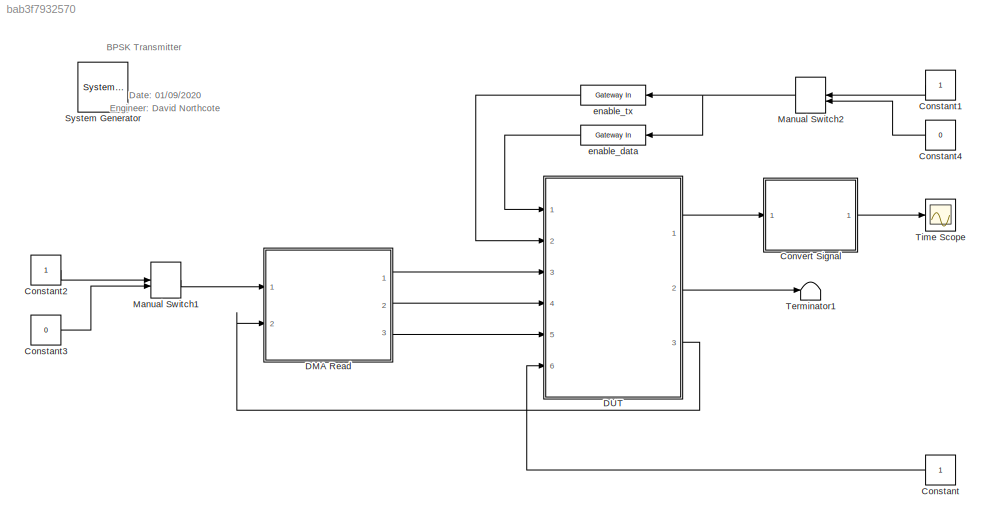
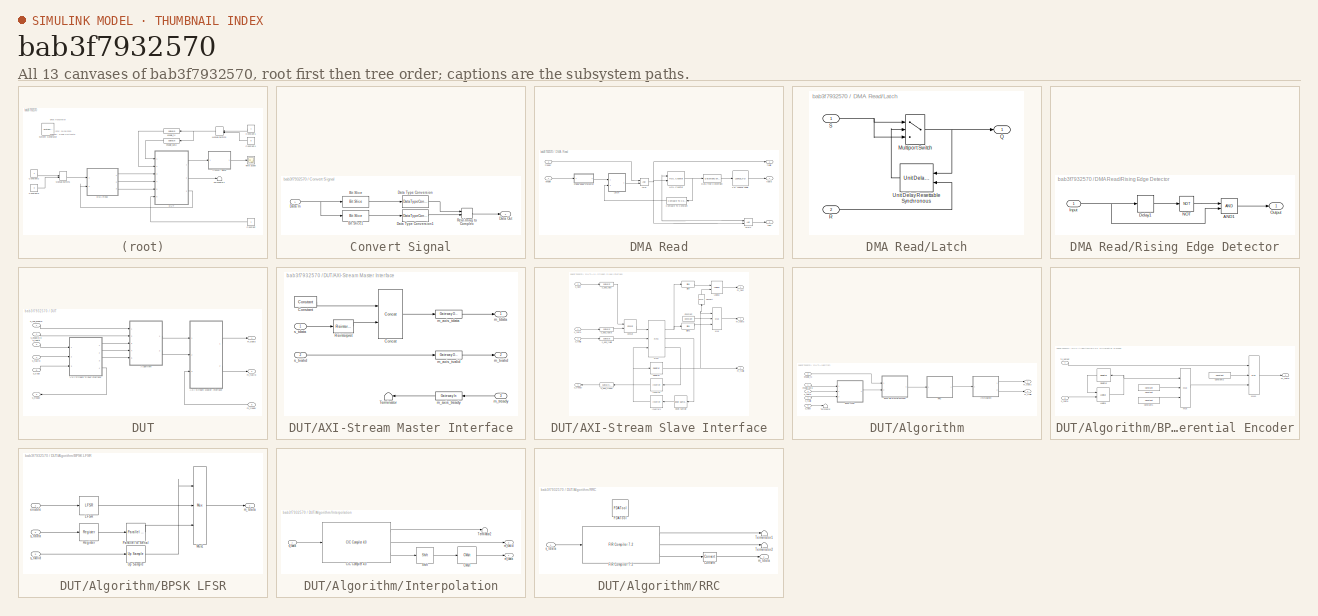
[diagram: thumbnail index - all 13 canvases of the model, root first then tree order]
MODEL slx_bab3f7932570
KIND model
CONFIG AbsTol = auto
CONFIG EnableMultiTasking = off
CONFIG FixedStep = auto
CONFIG InitFcn = setup_bpsk_transmitter
CONFIG MaxStep = auto
CONFIG MinStep = auto
CONFIG PreLoadFcn = setup_bpsk_transmitter
CONFIG RelTol = 1e-3
CONFIG SampleTimeConstraint = Unconstrained
CONFIG Solver = VariableStepAuto
CONFIG SolverName = VariableStepAuto
CONFIG StartTime = 0.0
CONFIG StopTime = 200/100e3
BLOCK [Reference]  System Generator  REF=xbsIndex_r4/ System Generator
  AttributesFormatString = System\nGenerator
  Ports = []
  SourceBlock = xbsIndex_r4/ System Generator
  SourceType = Xilinx System Generator Block
  Tag = genX
  UserDataPersistent = on
BLOCK [Constant] Constant
  SampleTime = 1/128e6
BLOCK [Constant] Constant1
  OutDataTypeStr = boolean
  SampleTime = 1/(100e3)
BLOCK [Constant] Constant2
  OutDataTypeStr = boolean
  SampleTime = 1/128e6
BLOCK [Constant] Constant3
  OutDataTypeStr = boolean
  SampleTime = 1/128e6
  Value = 0
BLOCK [Constant] Constant4
  OutDataTypeStr = boolean
  SampleTime = 1/(100e3)
  Value = 0
BLOCK [SubSystem] Convert Signal
  Ports = [1, 1]
  RequestExecContextInheritance = off
BLOCK [Reference] Convert Signal/Bit Slice  REF=hdlsllib/Logic and Bit
Operations/Bit Slice
  Ports = [1, 1]
  SourceBlock = hdlsllib/Logic and Bit\nOperations/Bit Slice
  SourceProductBaseCode = SL
  SourceType = Bit Slice
BLOCK [Reference] Convert Signal/Bit Slice1  REF=hdlsllib/Logic and Bit
Operations/Bit Slice
  Ports = [1, 1]
  SourceBlock = hdlsllib/Logic and Bit\nOperations/Bit Slice
  SourceProductBaseCode = SL
  SourceType = Bit Slice
BLOCK [Inport] Convert Signal/Data In
BLOCK [Outport] Convert Signal/Data Out
  VectorParamsAs1DForOutWhenUnconnected = off
BLOCK [DataTypeConversion] Convert Signal/Data Type Conversion
  ConvertRealWorld = Stored Integer (SI)
  OutDataTypeStr = fixdt(1,16,15)
  RndMeth = Floor
  SaturateOnIntegerOverflow = off
BLOCK [DataTypeConversion] Convert Signal/Data Type Conversion1
  ConvertRealWorld = Stored Integer (SI)
  OutDataTypeStr = fixdt(1,16,15)
  RndMeth = Floor
  SaturateOnIntegerOverflow = off
BLOCK [RealImagToComplex] Convert Signal/Real-Imag to Complex
  Ports = [2, 1]
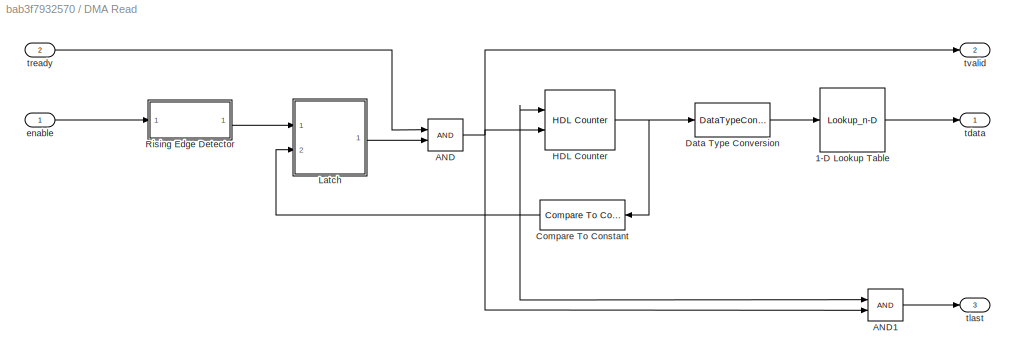
BLOCK [SubSystem] DMA Read
  Ports = [2, 3]
  RequestExecContextInheritance = off
BLOCK [Lookup_n-D] DMA Read/1-D Lookup Table
  BreakpointsForDimension1 = [0:1:numel(tx_data)-1]
  ExtrapMethod = Clip
  InternalRulePriority = Speed
  NumberOfTableDimensions = 1
  OutDataTypeStr = Inherit: Inherit from 'Table data'
  Ports = [1, 1]
  RndMeth = Simplest
  Table = tx_data
  TableDataTypeStr = Inherit: Inherit from 'Table data'
BLOCK [Logic] DMA Read/AND
  AllPortsSameDT = off
  IconShape = distinctive
  OutDataTypeStr = boolean
  Ports = [2, 1]
BLOCK [Logic] DMA Read/AND1
  AllPortsSameDT = off
  IconShape = distinctive
  OutDataTypeStr = boolean
  Ports = [2, 1]
BLOCK [Reference] DMA Read/Compare To Constant  REF=simulink/Logic and Bit
Operations/Compare
To Constant
  Ports = [1, 1]
  SourceBlock = simulink/Logic and Bit\nOperations/Compare\nTo Constant
  SourceProductBaseCode = SL
  SourceType = Compare To Constant
BLOCK [DataTypeConversion] DMA Read/Data Type Conversion
  OutDataTypeStr = fixdt(0, ceil(log2(numel(tx_data))), 0)
  RndMeth = Floor
  SaturateOnIntegerOverflow = off
BLOCK [Reference] DMA Read/HDL Counter  REF=hdlsllib/Sources/HDL Counter
  Ports = [2, 1]
  SourceBlock = hdlsllib/Sources/HDL Counter
  SourceProductBaseCode = SL
  SourceType = HDL Counter
BLOCK [SubSystem] DMA Read/Latch
  Ports = [2, 1]
  RequestExecContextInheritance = off
BLOCK [MultiPortSwitch] DMA Read/Latch/Multiport Switch
  DataPortOrder = Zero-based contiguous
  InputSameDT = off
  Inputs = 2
  Ports = [3, 1]
  SaturateOnIntegerOverflow = off
  zeroidx = on
BLOCK [Outport] DMA Read/Latch/Q
  VectorParamsAs1DForOutWhenUnconnected = off
BLOCK [Inport] DMA Read/Latch/R
  Port = 2
BLOCK [Inport] DMA Read/Latch/S
BLOCK [Reference] DMA Read/Latch/Unit Delay Resettable Synchronous  REF=hdlsllib/Discrete/Unit Delay Resettable
Synchronous
  Ports = [2, 1]
  SourceBlock = hdlsllib/Discrete/Unit Delay Resettable\nSynchronous
  SourceProductBaseCode = SL
  SourceType = Unit Delay Resettable Synchronous
BLOCK [SubSystem] DMA Read/Rising Edge Detector
  Ports = [1, 1]
  RequestExecContextInheritance = off
BLOCK [Logic] DMA Read/Rising Edge Detector/AND1
  AllPortsSameDT = off
  IconShape = distinctive
  OutDataTypeStr = boolean
  Ports = [2, 1]
BLOCK [Delay] DMA Read/Rising Edge Detector/Delay1
  DelayLength = 1
  InputPortMap = u0
  Ports = [1, 1]
BLOCK [Inport] DMA Read/Rising Edge Detector/Input
BLOCK [Logic] DMA Read/Rising Edge Detector/NOT
  AllPortsSameDT = off
  IconShape = distinctive
  Operator = NOT
  OutDataTypeStr = boolean
  Ports = [1, 1]
BLOCK [Outport] DMA Read/Rising Edge Detector/Output
  VectorParamsAs1DForOutWhenUnconnected = off
BLOCK [Inport] DMA Read/enable
BLOCK [Outport] DMA Read/tdata
  VectorParamsAs1DForOutWhenUnconnected = off
BLOCK [Outport] DMA Read/tlast
  Port = 3
  VectorParamsAs1DForOutWhenUnconnected = off
BLOCK [Inport] DMA Read/tready
  Port = 2
BLOCK [Outport] DMA Read/tvalid
  Port = 2
  VectorParamsAs1DForOutWhenUnconnected = off
BLOCK [SubSystem] DUT
  Ports = [6, 3]
  RequestExecContextInheritance = off
BLOCK [SubSystem] DUT/AXI-Stream Master Interface
  Ports = [3, 2]
  RequestExecContextInheritance = off
BLOCK [Reference] DUT/AXI-Stream Master Interface/Concat  REF=xbsIndex_r4/Concat
  Ports = [2, 1]
  SourceBlock = xbsIndex_r4/Concat
  SourceType = Xilinx Bus Concatenator Block
BLOCK [Reference] DUT/AXI-Stream Master Interface/Constant  REF=xbsIndex_r4/Constant
  Ports = [0, 1]
  SourceBlock = xbsIndex_r4/Constant
  SourceType = Xilinx Constant Block Block
BLOCK [Reference] DUT/AXI-Stream Master Interface/Reinterpret  REF=xbsIndex_r4/Reinterpret
  Ports = [1, 1]
  SourceBlock = xbsIndex_r4/Reinterpret
  SourceType = Xilinx Type Reinterpreter Block
BLOCK [Terminator] DUT/AXI-Stream Master Interface/Terminator
BLOCK [Reference] DUT/AXI-Stream Master Interface/m_axis_tdata  REF=xbsIndex_r4/Gateway Out
  Ports = [1, 1]
  SourceBlock = xbsIndex_r4/Gateway Out
  SourceType = Xilinx Gateway Out Block
BLOCK [Reference] DUT/AXI-Stream Master Interface/m_axis_tready  REF=xbsIndex_r4/Gateway In
  Ports = [1, 1]
  SourceBlock = xbsIndex_r4/Gateway In
  SourceType = Xilinx Gateway In Block
BLOCK [Reference] DUT/AXI-Stream Master Interface/m_axis_tvalid  REF=xbsIndex_r4/Gateway Out
  Ports = [1, 1]
  SourceBlock = xbsIndex_r4/Gateway Out
  SourceType = Xilinx Gateway Out Block
BLOCK [Outport] DUT/AXI-Stream Master Interface/m_tdata
  VectorParamsAs1DForOutWhenUnconnected = off
BLOCK [Inport] DUT/AXI-Stream Master Interface/m_tready
  Port = 3
BLOCK [Outport] DUT/AXI-Stream Master Interface/m_tvalid
  Port = 2
  VectorParamsAs1DForOutWhenUnconnected = off
BLOCK [Inport] DUT/AXI-Stream Master Interface/s_tdata
BLOCK [Inport] DUT/AXI-Stream Master Interface/s_tvalid
  Port = 2
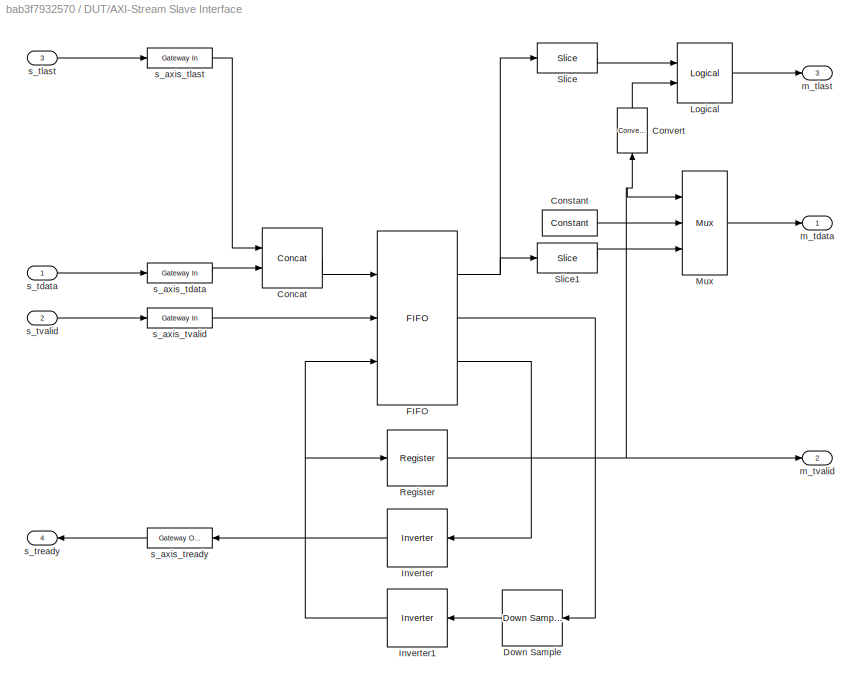
BLOCK [SubSystem] DUT/AXI-Stream Slave Interface
  Ports = [3, 4]
  RequestExecContextInheritance = off
BLOCK [Reference] DUT/AXI-Stream Slave Interface/Concat  REF=xbsIndex_r4/Concat
  Ports = [2, 1]
  SourceBlock = xbsIndex_r4/Concat
  SourceType = Xilinx Bus Concatenator Block
BLOCK [Reference] DUT/AXI-Stream Slave Interface/Constant  REF=xbsIndex_r4/Constant
  Ports = [0, 1]
  SourceBlock = xbsIndex_r4/Constant
  SourceType = Xilinx Constant Block Block
BLOCK [Reference] DUT/AXI-Stream Slave Interface/Convert  REF=xbsIndex_r4/Convert
  NameLocation = right
  Ports = [1, 1]
  SourceBlock = xbsIndex_r4/Convert
  SourceType = Xilinx Type Converter Block
BLOCK [Reference] DUT/AXI-Stream Slave Interface/Down Sample  REF=xbsIndex_r4/Down Sample
  Ports = [1, 1]
  SourceBlock = xbsIndex_r4/Down Sample
  SourceType = Xilinx Down Sampler Block
BLOCK [Reference] DUT/AXI-Stream Slave Interface/FIFO  REF=xbsIndex_r4/FIFO
  Ports = [3, 3]
  SourceBlock = xbsIndex_r4/FIFO
  SourceType = Xilinx FIFO Block Block
BLOCK [Reference] DUT/AXI-Stream Slave Interface/Inverter  REF=xbsIndex_r4/Inverter
  Ports = [1, 1]
  SourceBlock = xbsIndex_r4/Inverter
  SourceType = Xilinx Inverter Block
BLOCK [Reference] DUT/AXI-Stream Slave Interface/Inverter1  REF=xbsIndex_r4/Inverter
  Ports = [1, 1]
  SourceBlock = xbsIndex_r4/Inverter
  SourceType = Xilinx Inverter Block
BLOCK [Reference] DUT/AXI-Stream Slave Interface/Logical  REF=xbsIndex_r4/Logical
  Ports = [2, 1]
  SourceBlock = xbsIndex_r4/Logical
  SourceType = Xilinx Logical Block Block
BLOCK [Reference] DUT/AXI-Stream Slave Interface/Mux  REF=xbsIndex_r4/Mux
  Ports = [3, 1]
  SourceBlock = xbsIndex_r4/Mux
  SourceType = Xilinx Bus Multiplexer Block
BLOCK [Reference] DUT/AXI-Stream Slave Interface/Register  REF=xbsIndex_r4/Register
  Ports = [1, 1]
  SourceBlock = xbsIndex_r4/Register
  SourceType = Xilinx Register Block
BLOCK [Reference] DUT/AXI-Stream Slave Interface/Slice  REF=xbsIndex_r4/Slice
  Ports = [1, 1]
  SourceBlock = xbsIndex_r4/Slice
  SourceType = Xilinx Bit Slice Extractor Block
BLOCK [Reference] DUT/AXI-Stream Slave Interface/Slice1  REF=xbsIndex_r4/Slice
  Ports = [1, 1]
  SourceBlock = xbsIndex_r4/Slice
  SourceType = Xilinx Bit Slice Extractor Block
BLOCK [Outport] DUT/AXI-Stream Slave Interface/m_tdata
  VectorParamsAs1DForOutWhenUnconnected = off
BLOCK [Outport] DUT/AXI-Stream Slave Interface/m_tlast
  Port = 3
  VectorParamsAs1DForOutWhenUnconnected = off
BLOCK [Outport] DUT/AXI-Stream Slave Interface/m_tvalid
  Port = 2
  VectorParamsAs1DForOutWhenUnconnected = off
BLOCK [Reference] DUT/AXI-Stream Slave Interface/s_axis_tdata  REF=xbsIndex_r4/Gateway In
  Ports = [1, 1]
  SourceBlock = xbsIndex_r4/Gateway In
  SourceType = Xilinx Gateway In Block
BLOCK [Reference] DUT/AXI-Stream Slave Interface/s_axis_tlast  REF=xbsIndex_r4/Gateway In
  Ports = [1, 1]
  SourceBlock = xbsIndex_r4/Gateway In
  SourceType = Xilinx Gateway In Block
BLOCK [Reference] DUT/AXI-Stream Slave Interface/s_axis_tready  REF=xbsIndex_r4/Gateway Out
  Ports = [1, 1]
  SourceBlock = xbsIndex_r4/Gateway Out
  SourceType = Xilinx Gateway Out Block
BLOCK [Reference] DUT/AXI-Stream Slave Interface/s_axis_tvalid  REF=xbsIndex_r4/Gateway In
  Ports = [1, 1]
  SourceBlock = xbsIndex_r4/Gateway In
  SourceType = Xilinx Gateway In Block
BLOCK [Inport] DUT/AXI-Stream Slave Interface/s_tdata
BLOCK [Inport] DUT/AXI-Stream Slave Interface/s_tlast
  Port = 3
BLOCK [Outport] DUT/AXI-Stream Slave Interface/s_tready
  Port = 4
  VectorParamsAs1DForOutWhenUnconnected = off
BLOCK [Inport] DUT/AXI-Stream Slave Interface/s_tvalid
  Port = 2
BLOCK [SubSystem] DUT/Algorithm
  Ports = [5, 2]
  RequestExecContextInheritance = off
BLOCK [SubSystem] DUT/Algorithm/BPSK Differential Encoder
  Ports = [2, 1]
  RequestExecContextInheritance = off
BLOCK [Reference] DUT/Algorithm/BPSK Differential Encoder/Constant  REF=xbsIndex_r4/Constant
  Ports = [0, 1]
  SourceBlock = xbsIndex_r4/Constant
  SourceType = Xilinx Constant Block Block
BLOCK [Reference] DUT/Algorithm/BPSK Differential Encoder/Constant1  REF=xbsIndex_r4/Constant
  Ports = [0, 1]
  SourceBlock = xbsIndex_r4/Constant
  SourceType = Xilinx Constant Block Block
BLOCK [Reference] DUT/Algorithm/BPSK Differential Encoder/Constant2  REF=xbsIndex_r4/Constant
  Ports = [0, 1]
  SourceBlock = xbsIndex_r4/Constant
  SourceType = Xilinx Constant Block Block
BLOCK [Reference] DUT/Algorithm/BPSK Differential Encoder/Logical  REF=xbsIndex_r4/Logical
  Ports = [2, 1]
  SourceBlock = xbsIndex_r4/Logical
  SourceType = Xilinx Logical Block Block
BLOCK [Reference] DUT/Algorithm/BPSK Differential Encoder/Mux  REF=xbsIndex_r4/Mux
  Ports = [3, 1]
  SourceBlock = xbsIndex_r4/Mux
  SourceType = Xilinx Bus Multiplexer Block
BLOCK [Reference] DUT/Algorithm/BPSK Differential Encoder/Mux1  REF=xbsIndex_r4/Mux
  Ports = [3, 1]
  SourceBlock = xbsIndex_r4/Mux
  SourceType = Xilinx Bus Multiplexer Block
BLOCK [Reference] DUT/Algorithm/BPSK Differential Encoder/Register  REF=xbsIndex_r4/Register
  Ports = [1, 1]
  SourceBlock = xbsIndex_r4/Register
  SourceType = Xilinx Register Block
BLOCK [Outport] DUT/Algorithm/BPSK Differential Encoder/m_tdata
  VectorParamsAs1DForOutWhenUnconnected = off
BLOCK [Inport] DUT/Algorithm/BPSK Differential Encoder/s_tdata
  Port = 2
BLOCK [Inport] DUT/Algorithm/BPSK Differential Encoder/tx_output
BLOCK [SubSystem] DUT/Algorithm/BPSK LFSR
  Ports = [3, 1]
  RequestExecContextInheritance = off
BLOCK [Reference] DUT/Algorithm/BPSK LFSR/LFSR  REF=xbsIndex_r4/LFSR
  Ports = [1, 1]
  SourceBlock = xbsIndex_r4/LFSR
  SourceType = Xilinx Linear Feedback Shift Register Block
BLOCK [Reference] DUT/Algorithm/BPSK LFSR/Mux1  REF=xbsIndex_r4/Mux
  Ports = [3, 1]
  SourceBlock = xbsIndex_r4/Mux
  SourceType = Xilinx Bus Multiplexer Block
BLOCK [Reference] DUT/Algorithm/BPSK LFSR/Parallel to Serial  REF=xbsIndex_r4/Parallel to Serial
  Ports = [1, 1]
  SourceBlock = xbsIndex_r4/Parallel to Serial
  SourceType = Xilinx Parallel to Serial Converter Block
BLOCK [Reference] DUT/Algorithm/BPSK LFSR/Register  REF=xbsIndex_r4/Register
  Ports = [1, 1]
  SourceBlock = xbsIndex_r4/Register
  SourceType = Xilinx Register Block
BLOCK [Reference] DUT/Algorithm/BPSK LFSR/Up Sample  REF=xbsIndex_r4/Up Sample
  Ports = [1, 1]
  SourceBlock = xbsIndex_r4/Up Sample
  SourceType = Xilinx Up Sampler Block
BLOCK [Inport] DUT/Algorithm/BPSK LFSR/enable
BLOCK [Outport] DUT/Algorithm/BPSK LFSR/m_tdata
  VectorParamsAs1DForOutWhenUnconnected = off
BLOCK [Inport] DUT/Algorithm/BPSK LFSR/s_tdata
  Port = 2
BLOCK [Inport] DUT/Algorithm/BPSK LFSR/s_tvalid
  Port = 3
BLOCK [SubSystem] DUT/Algorithm/Interpolation
  Ports = [1, 2]
  RequestExecContextInheritance = off
BLOCK [Reference] DUT/Algorithm/Interpolation/CIC Compiler 4.0   REF=xbsIndex_r4/CIC Compiler 4.0 
  Ports = [1, 3]
  SourceBlock = xbsIndex_r4/CIC Compiler 4.0
  SourceType = Xilinx CIC Compiler 4.0 Block
BLOCK [Reference] DUT/Algorithm/Interpolation/CMult  REF=xbsIndex_r4/CMult
  Ports = [1, 1]
  SourceBlock = xbsIndex_r4/CMult
  SourceType = Xilinx Constant Multiplier Block
BLOCK [Reference] DUT/Algorithm/Interpolation/Shift  REF=xbsIndex_r4/Shift
  Ports = [1, 1]
  SourceBlock = xbsIndex_r4/Shift
  SourceType = Xilinx Binary Shift Operator Block
BLOCK [Terminator] DUT/Algorithm/Interpolation/Terminator2
BLOCK [Outport] DUT/Algorithm/Interpolation/m_tdata
  VectorParamsAs1DForOutWhenUnconnected = off
BLOCK [Outport] DUT/Algorithm/Interpolation/m_tvalid
  Port = 2
  VectorParamsAs1DForOutWhenUnconnected = off
BLOCK [Inport] DUT/Algorithm/Interpolation/s_tdata
BLOCK [SubSystem] DUT/Algorithm/RRC
  Ports = [1, 1]
  RequestExecContextInheritance = off
BLOCK [Reference] DUT/Algorithm/RRC/Convert  REF=xbsIndex_r4/Convert
  Ports = [1, 1]
  SourceBlock = xbsIndex_r4/Convert
  SourceType = Xilinx Type Converter Block
BLOCK [Reference] DUT/Algorithm/RRC/FDATool  REF=xbsIndex_r4/FDATool
  Ports = []
  SourceBlock = xbsIndex_r4/FDATool
  SourceType = Xilinx FDATool Interface Block
  UserDataPersistent = on
BLOCK [Reference] DUT/Algorithm/RRC/FIR Compiler 7.2   REF=xbsIndex_r4/FIR Compiler 7.2 
  Ports = [1, 3]
  SourceBlock = xbsIndex_r4/FIR Compiler 7.2
  SourceType = Xilinx FIR Compiler 7.2 Block
BLOCK [Terminator] DUT/Algorithm/RRC/Terminator1
BLOCK [Terminator] DUT/Algorithm/RRC/Terminator2
BLOCK [Outport] DUT/Algorithm/RRC/m_tdata
  VectorParamsAs1DForOutWhenUnconnected = off
BLOCK [Inport] DUT/Algorithm/RRC/s_tdata
BLOCK [Terminator] DUT/Algorithm/Terminator
BLOCK [Inport] DUT/Algorithm/enable_data
BLOCK [Inport] DUT/Algorithm/enable_tx
  Port = 2
BLOCK [Outport] DUT/Algorithm/m_tdata
  VectorParamsAs1DForOutWhenUnconnected = off
BLOCK [Outport] DUT/Algorithm/m_tvalid
  Port = 2
  VectorParamsAs1DForOutWhenUnconnected = off
BLOCK [Inport] DUT/Algorithm/s_tdata
  Port = 3
BLOCK [Inport] DUT/Algorithm/s_tlast
  Port = 5
BLOCK [Inport] DUT/Algorithm/s_tvalid
  Port = 4
BLOCK [Outport] DUT/m_tdata
  VectorParamsAs1DForOutWhenUnconnected = off
BLOCK [Inport] DUT/m_tready
  Port = 6
BLOCK [Outport] DUT/m_tvalid
  Port = 2
  VectorParamsAs1DForOutWhenUnconnected = off
BLOCK [Inport] DUT/s_enable_tx
  Port = 2
BLOCK [Inport] DUT/s_reg_enable
BLOCK [Inport] DUT/s_tdata
  Port = 3
BLOCK [Inport] DUT/s_tlast
  Port = 5
BLOCK [Outport] DUT/s_tready
  Port = 3
  VectorParamsAs1DForOutWhenUnconnected = off
BLOCK [Inport] DUT/s_tvalid
  Port = 4
BLOCK [ManualSwitch] Manual Switch1
BLOCK [ManualSwitch] Manual Switch2
  NameLocation = top
BLOCK [Terminator] Terminator1
BLOCK [Scope] Time Scope
  DefaultConfigurationName = spbscopes.TimeScopeBlockCfg
  Floating = off
  NumInputPorts = 1
  Ports = [1]
  ScopeSpecificationString = spbscopes.TimeScopeBlockCfg('CurrentConfiguration', extmgr.ConfigurationSet(extmgr.Configuration('Core','General UI',true,'FigureColor',[1 1 1]),extmgr.Configuration('Core','Source UI',true),extmgr.Configuration('Sources','WiredSimulink',true),extmgr.Configuration('Visuals','Time Domain',true,'DisplayPropertyDefaults',struct('MinYLimReal','-1.24338','MaxYLimReal','1.24777','YLabelReal','Amplitude'...<+2460ch>
  UserDataPersistent = on
BLOCK [Reference] enable_data  REF=xbsIndex_r4/Gateway In
  Ports = [1, 1]
  SourceBlock = xbsIndex_r4/Gateway In
  SourceType = Xilinx Gateway In Block
BLOCK [Reference] enable_tx  REF=xbsIndex_r4/Gateway In
  Ports = [1, 1]
  SourceBlock = xbsIndex_r4/Gateway In
  SourceType = Xilinx Gateway In Block
ANNOTATION (root): BPSK Transmitter
ANNOTATION (root): Engineer: David Northcote Date: 01/09/2020
LINE Constant1:1 -> Manual Switch2:1
LINE Constant2:1 -> Manual Switch1:1
LINE Constant3:1 -> Manual Switch1:2
LINE Constant4:1 -> Manual Switch2:2
LINE Constant:1 -> DUT:6
LINE Convert Signal/Bit Slice1:1 -> Convert Signal/Data Type Conversion1:1
LINE Convert Signal/Bit Slice:1 -> Convert Signal/Data Type Conversion:1
NET Convert Signal/Data In:1 -> Convert Signal/Bit Slice1:1, Convert Signal/Bit Slice:1
LINE Convert Signal/Data Type Conversion1:1 -> Convert Signal/Real-Imag to Complex:2
LINE Convert Signal/Data Type Conversion:1 -> Convert Signal/Real-Imag to Complex:1
LINE Convert Signal/Real-Imag to Complex:1 -> Convert Signal/Data Out:1
LINE Convert Signal:1 -> Time Scope:1
LINE DMA Read/1-D Lookup Table:1 -> DMA Read/tdata:1
LINE DMA Read/AND1:1 -> DMA Read/tlast:1
NET DMA Read/AND:1 -> DMA Read/AND1:2, DMA Read/HDL Counter:2, DMA Read/tvalid:1
NET DMA Read/Compare To Constant:1 -> DMA Read/AND1:1, DMA Read/HDL Counter:1, DMA Read/Latch:2
LINE DMA Read/Data Type Conversion:1 -> DMA Read/1-D Lookup Table:1
NET DMA Read/HDL Counter:1 -> DMA Read/Compare To Constant:1, DMA Read/Data Type Conversion:1
NET DMA Read/Latch/Multiport Switch:1 -> DMA Read/Latch/Q:1, DMA Read/Latch/Unit Delay Resettable Synchronous:1
LINE DMA Read/Latch/R:1 -> DMA Read/Latch/Unit Delay Resettable Synchronous:2
NET DMA Read/Latch/S:1 -> DMA Read/Latch/Multiport Switch:1, DMA Read/Latch/Multiport Switch:3
LINE DMA Read/Latch/Unit Delay Resettable Synchronous:1 -> DMA Read/Latch/Multiport Switch:2
LINE DMA Read/Latch:1 -> DMA Read/AND:2
LINE DMA Read/Rising Edge Detector/AND1:1 -> DMA Read/Rising Edge Detector/Output:1
LINE DMA Read/Rising Edge Detector/Delay1:1 -> DMA Read/Rising Edge Detector/NOT:1
NET DMA Read/Rising Edge Detector/Input:1 -> DMA Read/Rising Edge Detector/AND1:2, DMA Read/Rising Edge Detector/Delay1:1
LINE DMA Read/Rising Edge Detector/NOT:1 -> DMA Read/Rising Edge Detector/AND1:1
LINE DMA Read/Rising Edge Detector:1 -> DMA Read/Latch:1
LINE DMA Read/enable:1 -> DMA Read/Rising Edge Detector:1
LINE DMA Read/tready:1 -> DMA Read/AND:1
LINE DMA Read:1 -> DUT:3
LINE DMA Read:2 -> DUT:4
LINE DMA Read:3 -> DUT:5
LINE DUT/AXI-Stream Master Interface/Concat:1 -> DUT/AXI-Stream Master Interface/m_axis_tdata:1
LINE DUT/AXI-Stream Master Interface/Constant:1 -> DUT/AXI-Stream Master Interface/Concat:1
LINE DUT/AXI-Stream Master Interface/Reinterpret:1 -> DUT/AXI-Stream Master Interface/Concat:2
LINE DUT/AXI-Stream Master Interface/m_axis_tdata:1 -> DUT/AXI-Stream Master Interface/m_tdata:1
LINE DUT/AXI-Stream Master Interface/m_axis_tready:1 -> DUT/AXI-Stream Master Interface/Terminator:1
LINE DUT/AXI-Stream Master Interface/m_axis_tvalid:1 -> DUT/AXI-Stream Master Interface/m_tvalid:1
LINE DUT/AXI-Stream Master Interface/m_tready:1 -> DUT/AXI-Stream Master Interface/m_axis_tready:1
LINE DUT/AXI-Stream Master Interface/s_tdata:1 -> DUT/AXI-Stream Master Interface/Reinterpret:1
LINE DUT/AXI-Stream Master Interface/s_tvalid:1 -> DUT/AXI-Stream Master Interface/m_axis_tvalid:1
LINE DUT/AXI-Stream Master Interface:1 -> DUT/m_tdata:1
LINE DUT/AXI-Stream Master Interface:2 -> DUT/m_tvalid:1
LINE DUT/AXI-Stream Slave Interface/Concat:1 -> DUT/AXI-Stream Slave Interface/FIFO:1
LINE DUT/AXI-Stream Slave Interface/Constant:1 -> DUT/AXI-Stream Slave Interface/Mux:2
LINE DUT/AXI-Stream Slave Interface/Convert:1 -> DUT/AXI-Stream Slave Interface/Logical:2
LINE DUT/AXI-Stream Slave Interface/Down Sample:1 -> DUT/AXI-Stream Slave Interface/Inverter1:1
NET DUT/AXI-Stream Slave Interface/FIFO:1 -> DUT/AXI-Stream Slave Interface/Slice1:1, DUT/AXI-Stream Slave Interface/Slice:1
LINE DUT/AXI-Stream Slave Interface/FIFO:2 -> DUT/AXI-Stream Slave Interface/Down Sample:1
LINE DUT/AXI-Stream Slave Interface/FIFO:3 -> DUT/AXI-Stream Slave Interface/Inverter:1
NET DUT/AXI-Stream Slave Interface/Inverter1:1 -> DUT/AXI-Stream Slave Interface/FIFO:3, DUT/AXI-Stream Slave Interface/Register:1
LINE DUT/AXI-Stream Slave Interface/Inverter:1 -> DUT/AXI-Stream Slave Interface/s_axis_tready:1
LINE DUT/AXI-Stream Slave Interface/Logical:1 -> DUT/AXI-Stream Slave Interface/m_tlast:1
LINE DUT/AXI-Stream Slave Interface/Mux:1 -> DUT/AXI-Stream Slave Interface/m_tdata:1
NET DUT/AXI-Stream Slave Interface/Register:1 -> DUT/AXI-Stream Slave Interface/Convert:1, DUT/AXI-Stream Slave Interface/Mux:1, DUT/AXI-Stream Slave Interface/m_tvalid:1
LINE DUT/AXI-Stream Slave Interface/Slice1:1 -> DUT/AXI-Stream Slave Interface/Mux:3
LINE DUT/AXI-Stream Slave Interface/Slice:1 -> DUT/AXI-Stream Slave Interface/Logical:1
LINE DUT/AXI-Stream Slave Interface/s_axis_tdata:1 -> DUT/AXI-Stream Slave Interface/Concat:2
LINE DUT/AXI-Stream Slave Interface/s_axis_tlast:1 -> DUT/AXI-Stream Slave Interface/Concat:1
LINE DUT/AXI-Stream Slave Interface/s_axis_tready:1 -> DUT/AXI-Stream Slave Interface/s_tready:1
LINE DUT/AXI-Stream Slave Interface/s_axis_tvalid:1 -> DUT/AXI-Stream Slave Interface/FIFO:2
LINE DUT/AXI-Stream Slave Interface/s_tdata:1 -> DUT/AXI-Stream Slave Interface/s_axis_tdata:1
LINE DUT/AXI-Stream Slave Interface/s_tlast:1 -> DUT/AXI-Stream Slave Interface/s_axis_tlast:1
LINE DUT/AXI-Stream Slave Interface/s_tvalid:1 -> DUT/AXI-Stream Slave Interface/s_axis_tvalid:1
LINE DUT/AXI-Stream Slave Interface:1 -> DUT/Algorithm:3
LINE DUT/AXI-Stream Slave Interface:2 -> DUT/Algorithm:4
LINE DUT/AXI-Stream Slave Interface:3 -> DUT/Algorithm:5
LINE DUT/AXI-Stream Slave Interface:4 -> DUT/s_tready:1
LINE DUT/Algorithm/BPSK Differential Encoder/Constant1:1 -> DUT/Algorithm/BPSK Differential Encoder/Mux:3
LINE DUT/Algorithm/BPSK Differential Encoder/Constant2:1 -> DUT/Algorithm/BPSK Differential Encoder/Mux1:2
LINE DUT/Algorithm/BPSK Differential Encoder/Constant:1 -> DUT/Algorithm/BPSK Differential Encoder/Mux:2
NET DUT/Algorithm/BPSK Differential Encoder/Logical:1 -> DUT/Algorithm/BPSK Differential Encoder/Mux:1, DUT/Algorithm/BPSK Differential Encoder/Register:1
LINE DUT/Algorithm/BPSK Differential Encoder/Mux1:1 -> DUT/Algorithm/BPSK Differential Encoder/m_tdata:1
LINE DUT/Algorithm/BPSK Differential Encoder/Mux:1 -> DUT/Algorithm/BPSK Differential Encoder/Mux1:3
LINE DUT/Algorithm/BPSK Differential Encoder/Register:1 -> DUT/Algorithm/BPSK Differential Encoder/Logical:1
LINE DUT/Algorithm/BPSK Differential Encoder/s_tdata:1 -> DUT/Algorithm/BPSK Differential Encoder/Logical:2
LINE DUT/Algorithm/BPSK Differential Encoder/tx_output:1 -> DUT/Algorithm/BPSK Differential Encoder/Mux1:1
LINE DUT/Algorithm/BPSK Differential Encoder:1 -> DUT/Algorithm/RRC:1
LINE DUT/Algorithm/BPSK LFSR/LFSR:1 -> DUT/Algorithm/BPSK LFSR/Mux1:2
LINE DUT/Algorithm/BPSK LFSR/Mux1:1 -> DUT/Algorithm/BPSK LFSR/m_tdata:1
LINE DUT/Algorithm/BPSK LFSR/Parallel to Serial:1 -> DUT/Algorithm/BPSK LFSR/Mux1:3
LINE DUT/Algorithm/BPSK LFSR/Register:1 -> DUT/Algorithm/BPSK LFSR/Parallel to Serial:1
LINE DUT/Algorithm/BPSK LFSR/Up Sample:1 -> DUT/Algorithm/BPSK LFSR/Mux1:1
LINE DUT/Algorithm/BPSK LFSR/enable:1 -> DUT/Algorithm/BPSK LFSR/LFSR:1
LINE DUT/Algorithm/BPSK LFSR/s_tdata:1 -> DUT/Algorithm/BPSK LFSR/Register:1
LINE DUT/Algorithm/BPSK LFSR/s_tvalid:1 -> DUT/Algorithm/BPSK LFSR/Up Sample:1
LINE DUT/Algorithm/BPSK LFSR:1 -> DUT/Algorithm/BPSK Differential Encoder:2
LINE DUT/Algorithm/Interpolation/CIC Compiler 4.0 :1 -> DUT/Algorithm/Interpolation/Terminator2:1
LINE DUT/Algorithm/Interpolation/CIC Compiler 4.0 :2 -> DUT/Algorithm/Interpolation/m_tvalid:1
LINE DUT/Algorithm/Interpolation/CIC Compiler 4.0 :3 -> DUT/Algorithm/Interpolation/Shift:1
LINE DUT/Algorithm/Interpolation/CMult:1 -> DUT/Algorithm/Interpolation/m_tdata:1
LINE DUT/Algorithm/Interpolation/Shift:1 -> DUT/Algorithm/Interpolation/CMult:1
LINE DUT/Algorithm/Interpolation/s_tdata:1 -> DUT/Algorithm/Interpolation/CIC Compiler 4.0 :1
LINE DUT/Algorithm/Interpolation:1 -> DUT/Algorithm/m_tdata:1
LINE DUT/Algorithm/Interpolation:2 -> DUT/Algorithm/m_tvalid:1
LINE DUT/Algorithm/RRC/Convert:1 -> DUT/Algorithm/RRC/m_tdata:1
LINE DUT/Algorithm/RRC/FIR Compiler 7.2 :1 -> DUT/Algorithm/RRC/Terminator1:1
LINE DUT/Algorithm/RRC/FIR Compiler 7.2 :2 -> DUT/Algorithm/RRC/Terminator2:1
LINE DUT/Algorithm/RRC/FIR Compiler 7.2 :3 -> DUT/Algorithm/RRC/Convert:1
LINE DUT/Algorithm/RRC/s_tdata:1 -> DUT/Algorithm/RRC/FIR Compiler 7.2 :1
LINE DUT/Algorithm/RRC:1 -> DUT/Algorithm/Interpolation:1
LINE DUT/Algorithm/enable_data:1 -> DUT/Algorithm/BPSK LFSR:1
LINE DUT/Algorithm/enable_tx:1 -> DUT/Algorithm/BPSK Differential Encoder:1
LINE DUT/Algorithm/s_tdata:1 -> DUT/Algorithm/BPSK LFSR:2
LINE DUT/Algorithm/s_tlast:1 -> DUT/Algorithm/Terminator:1
LINE DUT/Algorithm/s_tvalid:1 -> DUT/Algorithm/BPSK LFSR:3
LINE DUT/Algorithm:1 -> DUT/AXI-Stream Master Interface:1
LINE DUT/Algorithm:2 -> DUT/AXI-Stream Master Interface:2
LINE DUT/m_tready:1 -> DUT/AXI-Stream Master Interface:3
LINE DUT/s_enable_tx:1 -> DUT/Algorithm:2
LINE DUT/s_reg_enable:1 -> DUT/Algorithm:1
LINE DUT/s_tdata:1 -> DUT/AXI-Stream Slave Interface:1
LINE DUT/s_tlast:1 -> DUT/AXI-Stream Slave Interface:3
LINE DUT/s_tvalid:1 -> DUT/AXI-Stream Slave Interface:2
LINE DUT:1 -> Convert Signal:1
LINE DUT:2 -> Terminator1:1
LINE DUT:3 -> DMA Read:2
LINE Manual Switch1:1 -> DMA Read:1
NET Manual Switch2:1 -> enable_data:1, enable_tx:1
LINE enable_data:1 -> DUT:1
LINE enable_tx:1 -> DUT:2
note: NET lines group one-source signal fan-out (src -> all destinations, sorted); 1:1 wires keep LINE
